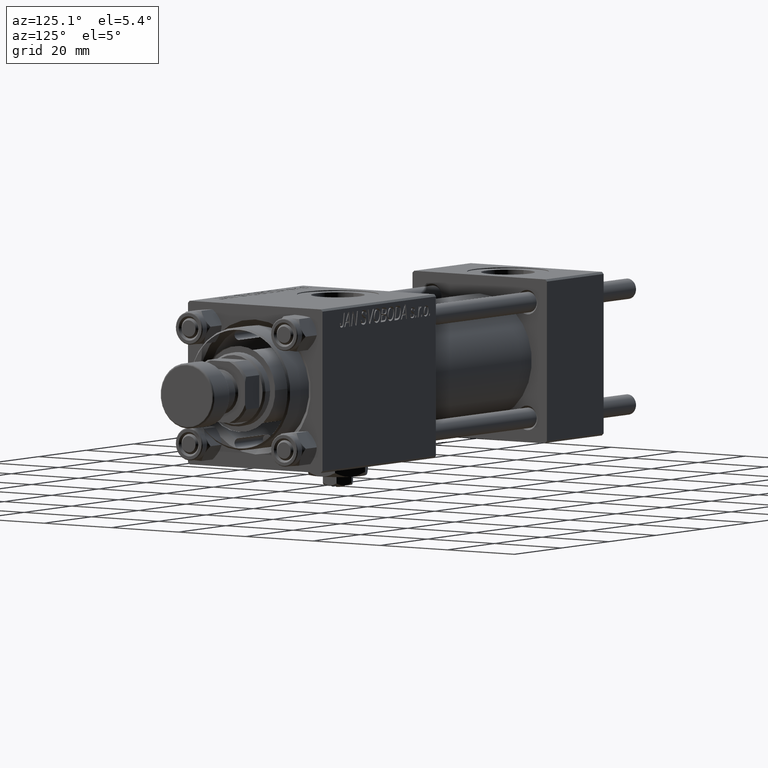
[diagram: clean part render]
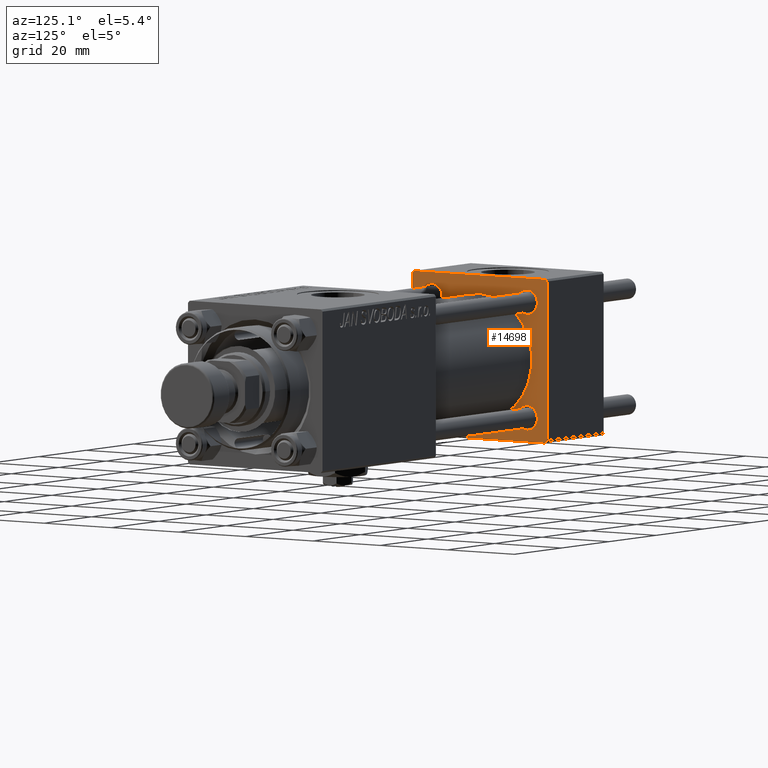
[diagram: same view with one face highlighted and labeled with its STEP entity id]
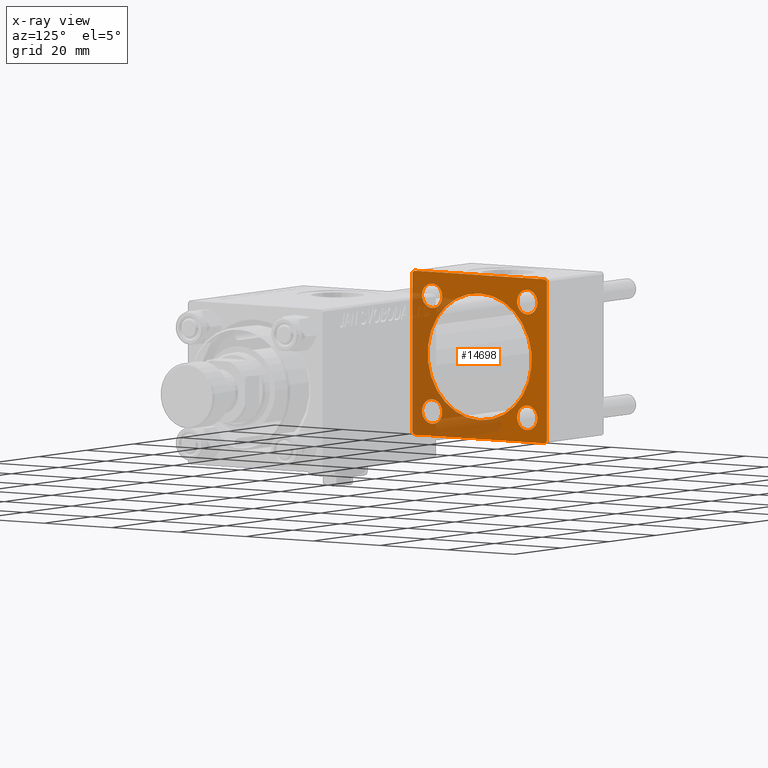
[diagram: x-ray of the same camera — body ghosted, the highlighted face saturated]
A machine part, auxiliary view. The second image highlights one B-rep face of the part: STEP entity #14698.
The next image is the same camera in x-ray: the body ghosted, the highlighted face saturated — about 39% of this face is hidden behind the body in this view.
In plain terms, the highlighted planar face has unit normal (-1, 0, 0).
Its self-contained STEP definition (entity closure, byte-faithful):
#2083 = CARTESIAN_POINT ( 'NONE',  ( 24.00000000000000000, 14.14999999999999858, -11.15000000000002700 ) ) ;
#2208 = AXIS2_PLACEMENT_3D ( 'NONE', #18383, #2859, #22324 ) ;
#2634 = CARTESIAN_POINT ( 'NONE',  ( 24.00000000000000000, 14.14999999999999858, 14.15000000000000036 ) ) ;
#2799 = CARTESIAN_POINT ( 'NONE',  ( 24.00000000000000000, 1.898202538678397557E-15, -15.50000000000000000 ) ) ;
#2824 = AXIS2_PLACEMENT_3D ( 'NONE', #2634, #41066, #45017 ) ;
#2833 = CARTESIAN_POINT ( 'NONE',  ( 24.00000000000000000, -19.49999999999999289, 19.99999999999998934 ) ) ;
#2859 = DIRECTION ( 'NONE',  ( -1.000000000000000000, -0.000000000000000000, -0.000000000000000000 ) ) ;
#2892 = CARTESIAN_POINT ( 'NONE',  ( 24.00000000000000000, 19.50000000000000000, 20.00000000000000000 ) ) ;
#2923 = ORIENTED_EDGE ( 'NONE', *, *, #42417, .T. ) ;
#3452 = CARTESIAN_POINT ( 'NONE',  ( 24.00000000000000000, -14.14999999999999503, 17.15000000000000568 ) ) ;
#3694 = VERTEX_POINT ( 'NONE', #8467 ) ;
#3913 = CARTESIAN_POINT ( 'NONE',  ( 24.00000000000000000, 19.50000000000000000, 20.00000000000000000 ) ) ;
#3976 = AXIS2_PLACEMENT_3D ( 'NONE', #51908, #35586, #15617 ) ;
#4552 = EDGE_LOOP ( 'NONE', ( #10291, #43379 ) ) ;
#5057 = AXIS2_PLACEMENT_3D ( 'NONE', #23051, #22808, #5777 ) ;
#5098 = DIRECTION ( 'NONE',  ( 0.000000000000000000, 8.673617379884036705E-17, -1.000000000000000000 ) ) ;
#5500 = CARTESIAN_POINT ( 'NONE',  ( 24.00000000000000000, 19.50000000000000711, -20.00000000000000711 ) ) ;
#5777 = DIRECTION ( 'NONE',  ( 0.000000000000000000, 0.000000000000000000, 1.000000000000000000 ) ) ;
#5826 = EDGE_CURVE ( 'NONE', #32748, #45880, #18732, .T. ) ;
#6760 = EDGE_CURVE ( 'NONE', #24035, #36391, #33829, .T. ) ;
#7098 = DIRECTION ( 'NONE',  ( 0.000000000000000000, -0.7071067811865425767, 0.7071067811865525687 ) ) ;
#7281 = AXIS2_PLACEMENT_3D ( 'NONE', #7389, #40206, #23424 ) ;
#7288 = CARTESIAN_POINT ( 'NONE',  ( 24.00000000000000000, -20.00000000000000000, -19.49999999999999645 ) ) ;
#7389 = CARTESIAN_POINT ( 'NONE',  ( 24.00000000000000000, 0.000000000000000000, 0.000000000000000000 ) ) ;
#7401 = ORIENTED_EDGE ( 'NONE', *, *, #37440, .T. ) ;
#7512 = VECTOR ( 'NONE', #5098, 1000.000000000000000 ) ;
#8149 = CARTESIAN_POINT ( 'NONE',  ( 24.00000000000000000, 0.000000000000000000, 0.000000000000000000 ) ) ;
#8159 = ORIENTED_EDGE ( 'NONE', *, *, #5826, .F. ) ;
#8241 = ORIENTED_EDGE ( 'NONE', *, *, #24456, .F. ) ;
#8467 = CARTESIAN_POINT ( 'NONE',  ( 24.00000000000000000, -14.14999999999999503, -17.15000000000000568 ) ) ;
#8591 = VERTEX_POINT ( 'NONE', #31344 ) ;
#8917 = CARTESIAN_POINT ( 'NONE',  ( 24.00000000000000000, -20.00000000000000355, 19.49999999999998224 ) ) ;
#9085 = CARTESIAN_POINT ( 'NONE',  ( 24.00000000000000000, 0.000000000000000000, 15.50000000000000000 ) ) ;
#9198 = CARTESIAN_POINT ( 'NONE',  ( 24.00000000000000000, 14.14999999999999858, -17.14999999999997726 ) ) ;
#10222 = CARTESIAN_POINT ( 'NONE',  ( 24.00000000000000000, -14.14999999999999503, 14.15000000000000391 ) ) ;
#10291 = ORIENTED_EDGE ( 'NONE', *, *, #47740, .T. ) ;
#10502 = ORIENTED_EDGE ( 'NONE', *, *, #6760, .T. ) ;
#11706 = AXIS2_PLACEMENT_3D ( 'NONE', #46551, #18674, #42342 ) ;
#11996 = EDGE_CURVE ( 'NONE', #18317, #20765, #18701, .T. ) ;
#12020 = VERTEX_POINT ( 'NONE', #34471 ) ;
#12145 = CARTESIAN_POINT ( 'NONE',  ( 24.00000000000000000, 20.00000000000000000, -19.50000000000002132 ) ) ;
#12284 = EDGE_CURVE ( 'NONE', #44719, #45252, #28896, .T. ) ;
#12325 = VERTEX_POINT ( 'NONE', #2083 ) ;
#12349 = FACE_OUTER_BOUND ( 'NONE', #29930, .T. ) ;
#12433 = DIRECTION ( 'NONE',  ( 0.000000000000000000, 0.000000000000000000, 1.000000000000000000 ) ) ;
#13106 = CARTESIAN_POINT ( 'NONE',  ( 24.00000000000000000, 14.14999999999999858, 11.15000000000002700 ) ) ;
#13637 = EDGE_LOOP ( 'NONE', ( #16282, #34849 ) ) ;
#13841 = VERTEX_POINT ( 'NONE', #9198 ) ;
#13933 = CARTESIAN_POINT ( 'NONE',  ( 24.00000000000000000, -19.50000000000000711, -20.00000000000000000 ) ) ;
#13943 = CARTESIAN_POINT ( 'NONE',  ( 24.00000000000000000, -20.00000000000000355, 19.49999999999998224 ) ) ;
#14698 = ADVANCED_FACE ( 'NONE', ( #24189, #23161, #51812, #31798, #32060, #12349 ), #27361, .F. ) ;
#14908 = DIRECTION ( 'NONE',  ( 0.000000000000000000, 0.000000000000000000, -1.000000000000000000 ) ) ;
#14977 = ORIENTED_EDGE ( 'NONE', *, *, #16499, .T. ) ;
#15244 = EDGE_CURVE ( 'NONE', #12020, #34635, #19613, .T. ) ;
#15366 = ORIENTED_EDGE ( 'NONE', *, *, #18433, .T. ) ;
#15416 = CARTESIAN_POINT ( 'NONE',  ( 24.00000000000000000, 20.00000000000000000, 20.00000000000000000 ) ) ;
#15617 = DIRECTION ( 'NONE',  ( 0.000000000000000000, 0.000000000000000000, 1.000000000000000000 ) ) ;
#16282 = ORIENTED_EDGE ( 'NONE', *, *, #40370, .T. ) ;
#16480 = CIRCLE ( 'NONE', #2208, 2.999999999999976463 ) ;
#16483 = VECTOR ( 'NONE', #14908, 1000.000000000000000 ) ;
#16499 = EDGE_CURVE ( 'NONE', #50592, #44719, #36286, .T. ) ;
#18317 = VERTEX_POINT ( 'NONE', #5500 ) ;
#18383 = CARTESIAN_POINT ( 'NONE',  ( 24.00000000000000000, 14.14999999999999858, -14.15000000000000036 ) ) ;
#18433 = EDGE_CURVE ( 'NONE', #12325, #13841, #16480, .T. ) ;
#18674 = DIRECTION ( 'NONE',  ( -1.000000000000000000, -0.000000000000000000, -0.000000000000000000 ) ) ;
#18701 = LINE ( 'NONE', #50790, #23112 ) ;
#18732 = CIRCLE ( 'NONE', #20411, 15.50000000000000000 ) ;
#19234 = VECTOR ( 'NONE', #48426, 1000.000000000000000 ) ;
#19613 = LINE ( 'NONE', #15416, #16483 ) ;
#20411 = AXIS2_PLACEMENT_3D ( 'NONE', #8149, #47598, #24191 ) ;
#20665 = EDGE_LOOP ( 'NONE', ( #10502, #7401 ) ) ;
#20765 = VERTEX_POINT ( 'NONE', #13933 ) ;
#21021 = ORIENTED_EDGE ( 'NONE', *, *, #29206, .T. ) ;
#21651 = AXIS2_PLACEMENT_3D ( 'NONE', #10222, #26254, #50709 ) ;
#22324 = DIRECTION ( 'NONE',  ( 0.000000000000000000, 0.000000000000000000, 1.000000000000000000 ) ) ;
#22808 = DIRECTION ( 'NONE',  ( -1.000000000000000000, -0.000000000000000000, -0.000000000000000000 ) ) ;
#22826 = CIRCLE ( 'NONE', #32828, 2.999999999999976463 ) ;
#22829 = DIRECTION ( 'NONE',  ( -1.000000000000000000, -0.000000000000000000, -0.000000000000000000 ) ) ;
#23051 = CARTESIAN_POINT ( 'NONE',  ( 24.00000000000000000, -14.14999999999999503, -14.15000000000000391 ) ) ;
#23112 = VECTOR ( 'NONE', #34722, 1000.000000000000000 ) ;
#23161 = FACE_BOUND ( 'NONE', #36452, .T. ) ;
#23278 = CIRCLE ( 'NONE', #3976, 2.999999999999976463 ) ;
#23424 = DIRECTION ( 'NONE',  ( -0.000000000000000000, 0.000000000000000000, 1.000000000000000000 ) ) ;
#23479 = LINE ( 'NONE', #12145, #19234 ) ;
#23767 = CARTESIAN_POINT ( 'NONE',  ( 24.00000000000000000, -14.14999999999999503, 14.15000000000000391 ) ) ;
#24035 = VERTEX_POINT ( 'NONE', #13106 ) ;
#24189 = FACE_BOUND ( 'NONE', #4552, .T. ) ;
#24191 = DIRECTION ( 'NONE',  ( 0.000000000000000000, 0.000000000000000000, 1.000000000000000000 ) ) ;
#24211 = DIRECTION ( 'NONE',  ( 0.000000000000000000, -1.000000000000000000, -2.602085213965210149E-16 ) ) ;
#24274 = DIRECTION ( 'NONE',  ( -1.000000000000000000, -0.000000000000000000, -0.000000000000000000 ) ) ;
#24456 = EDGE_CURVE ( 'NONE', #45880, #32748, #34352, .T. ) ;
#24806 = EDGE_CURVE ( 'NONE', #18317, #34635, #23479, .T. ) ;
#25769 = VECTOR ( 'NONE', #24211, 1000.000000000000000 ) ;
#26254 = DIRECTION ( 'NONE',  ( -1.000000000000000000, -0.000000000000000000, -0.000000000000000000 ) ) ;
#26300 = DIRECTION ( 'NONE',  ( 0.000000000000000000, 0.7071067811865401342, -0.7071067811865549002 ) ) ;
#26310 = EDGE_LOOP ( 'NONE', ( #8159, #8241 ) ) ;
#26557 = LINE ( 'NONE', #50229, #41216 ) ;
#27361 = PLANE ( 'NONE',  #7281 ) ;
#27844 = VECTOR ( 'NONE', #7098, 999.9999999999998863 ) ;
#28169 = VECTOR ( 'NONE', #40978, 1000.000000000000114 ) ;
#28477 = ORIENTED_EDGE ( 'NONE', *, *, #12284, .T. ) ;
#28896 = LINE ( 'NONE', #8917, #28169 ) ;
#29206 = EDGE_CURVE ( 'NONE', #44807, #20765, #26557, .T. ) ;
#29573 = EDGE_CURVE ( 'NONE', #13841, #12325, #22826, .T. ) ;
#29930 = EDGE_LOOP ( 'NONE', ( #45765, #36755, #51869, #40669, #14977, #28477, #2923, #21021 ) ) ;
#30032 = CARTESIAN_POINT ( 'NONE',  ( 24.00000000000000000, -14.14999999999999503, -11.15000000000000391 ) ) ;
#31344 = CARTESIAN_POINT ( 'NONE',  ( 24.00000000000000000, -14.14999999999999503, 11.15000000000000391 ) ) ;
#31798 = FACE_BOUND ( 'NONE', #20665, .T. ) ;
#32060 = FACE_BOUND ( 'NONE', #26310, .T. ) ;
#32582 = AXIS2_PLACEMENT_3D ( 'NONE', #23767, #24274, #12433 ) ;
#32748 = VERTEX_POINT ( 'NONE', #9085 ) ;
#32828 = AXIS2_PLACEMENT_3D ( 'NONE', #50703, #22829, #39094 ) ;
#33606 = CIRCLE ( 'NONE', #11706, 3.000000000000000888 ) ;
#33829 = CIRCLE ( 'NONE', #2824, 2.999999999999976463 ) ;
#34352 = CIRCLE ( 'NONE', #48615, 15.50000000000000000 ) ;
#34471 = CARTESIAN_POINT ( 'NONE',  ( 24.00000000000000000, 20.00000000000000000, 19.49999999999999289 ) ) ;
#34635 = VERTEX_POINT ( 'NONE', #36781 ) ;
#34722 = DIRECTION ( 'NONE',  ( 0.000000000000000000, -1.000000000000000000, 1.734723475976807094E-16 ) ) ;
#34849 = ORIENTED_EDGE ( 'NONE', *, *, #39459, .T. ) ;
#35586 = DIRECTION ( 'NONE',  ( -1.000000000000000000, -0.000000000000000000, -0.000000000000000000 ) ) ;
#36119 = CIRCLE ( 'NONE', #5057, 3.000000000000000888 ) ;
#36286 = LINE ( 'NONE', #44706, #25769 ) ;
#36391 = VERTEX_POINT ( 'NONE', #38776 ) ;
#36452 = EDGE_LOOP ( 'NONE', ( #44122, #15366 ) ) ;
#36755 = ORIENTED_EDGE ( 'NONE', *, *, #24806, .T. ) ;
#36781 = CARTESIAN_POINT ( 'NONE',  ( 24.00000000000000000, 20.00000000000000000, -19.50000000000002132 ) ) ;
#37440 = EDGE_CURVE ( 'NONE', #36391, #24035, #23278, .T. ) ;
#38538 = DIRECTION ( 'NONE',  ( 0.000000000000000000, 0.000000000000000000, 1.000000000000000000 ) ) ;
#38776 = CARTESIAN_POINT ( 'NONE',  ( 24.00000000000000000, 14.14999999999999858, 17.14999999999997726 ) ) ;
#39094 = DIRECTION ( 'NONE',  ( 0.000000000000000000, 0.000000000000000000, 1.000000000000000000 ) ) ;
#39406 = LINE ( 'NONE', #2892, #27844 ) ;
#39459 = EDGE_CURVE ( 'NONE', #43310, #8591, #48525, .T. ) ;
#40206 = DIRECTION ( 'NONE',  ( -1.000000000000000000, 0.000000000000000000, -0.000000000000000000 ) ) ;
#40325 = CARTESIAN_POINT ( 'NONE',  ( 24.00000000000000000, -20.00000000000000355, 19.99999999999998934 ) ) ;
#40370 = EDGE_CURVE ( 'NONE', #8591, #43310, #49415, .T. ) ;
#40669 = ORIENTED_EDGE ( 'NONE', *, *, #52012, .T. ) ;
#40978 = DIRECTION ( 'NONE',  ( -0.000000000000000000, -0.7071067811865500152, -0.7071067811865451302 ) ) ;
#41066 = DIRECTION ( 'NONE',  ( -1.000000000000000000, -0.000000000000000000, -0.000000000000000000 ) ) ;
#41216 = VECTOR ( 'NONE', #26300, 1000.000000000000000 ) ;
#42239 = CARTESIAN_POINT ( 'NONE',  ( 24.00000000000000000, 0.000000000000000000, 0.000000000000000000 ) ) ;
#42342 = DIRECTION ( 'NONE',  ( 0.000000000000000000, 0.000000000000000000, 1.000000000000000000 ) ) ;
#42417 = EDGE_CURVE ( 'NONE', #45252, #44807, #48744, .T. ) ;
#42489 = DIRECTION ( 'NONE',  ( 1.000000000000000000, 0.000000000000000000, 0.000000000000000000 ) ) ;
#43310 = VERTEX_POINT ( 'NONE', #3452 ) ;
#43379 = ORIENTED_EDGE ( 'NONE', *, *, #45408, .T. ) ;
#44122 = ORIENTED_EDGE ( 'NONE', *, *, #29573, .T. ) ;
#44706 = CARTESIAN_POINT ( 'NONE',  ( 24.00000000000000000, 20.00000000000000000, 20.00000000000000000 ) ) ;
#44719 = VERTEX_POINT ( 'NONE', #2833 ) ;
#44807 = VERTEX_POINT ( 'NONE', #7288 ) ;
#45017 = DIRECTION ( 'NONE',  ( 0.000000000000000000, 0.000000000000000000, 1.000000000000000000 ) ) ;
#45252 = VERTEX_POINT ( 'NONE', #13943 ) ;
#45408 = EDGE_CURVE ( 'NONE', #51648, #3694, #33606, .T. ) ;
#45765 = ORIENTED_EDGE ( 'NONE', *, *, #11996, .F. ) ;
#45880 = VERTEX_POINT ( 'NONE', #2799 ) ;
#46551 = CARTESIAN_POINT ( 'NONE',  ( 24.00000000000000000, -14.14999999999999503, -14.15000000000000391 ) ) ;
#47598 = DIRECTION ( 'NONE',  ( 1.000000000000000000, 0.000000000000000000, 0.000000000000000000 ) ) ;
#47740 = EDGE_CURVE ( 'NONE', #3694, #51648, #36119, .T. ) ;
#48426 = DIRECTION ( 'NONE',  ( -0.000000000000000000, 0.7071067811865524577, 0.7071067811865426878 ) ) ;
#48525 = CIRCLE ( 'NONE', #21651, 3.000000000000000888 ) ;
#48615 = AXIS2_PLACEMENT_3D ( 'NONE', #42239, #42489, #38538 ) ;
#48744 = LINE ( 'NONE', #40325, #7512 ) ;
#49415 = CIRCLE ( 'NONE', #32582, 3.000000000000000888 ) ;
#50229 = CARTESIAN_POINT ( 'NONE',  ( 24.00000000000000000, -19.50000000000000711, -20.00000000000000000 ) ) ;
#50592 = VERTEX_POINT ( 'NONE', #3913 ) ;
#50703 = CARTESIAN_POINT ( 'NONE',  ( 24.00000000000000000, 14.14999999999999858, -14.15000000000000036 ) ) ;
#50709 = DIRECTION ( 'NONE',  ( 0.000000000000000000, 0.000000000000000000, 1.000000000000000000 ) ) ;
#50790 = CARTESIAN_POINT ( 'NONE',  ( 24.00000000000000000, 20.00000000000000000, -20.00000000000000711 ) ) ;
#51648 = VERTEX_POINT ( 'NONE', #30032 ) ;
#51812 = FACE_BOUND ( 'NONE', #13637, .T. ) ;
#51869 = ORIENTED_EDGE ( 'NONE', *, *, #15244, .F. ) ;
#51908 = CARTESIAN_POINT ( 'NONE',  ( 24.00000000000000000, 14.14999999999999858, 14.15000000000000036 ) ) ;
#52012 = EDGE_CURVE ( 'NONE', #12020, #50592, #39406, .T. ) ;